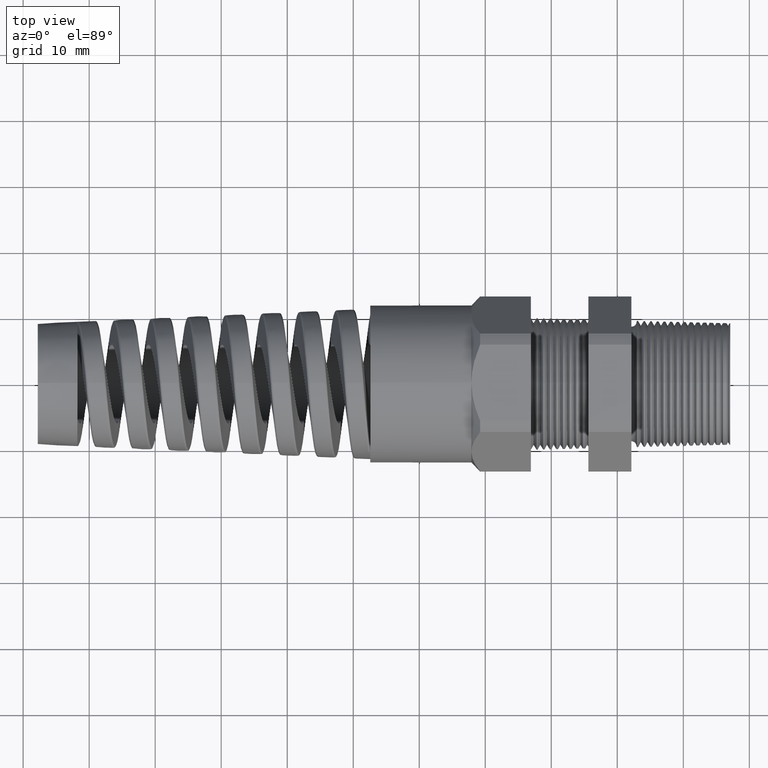
[diagram: clean part render]
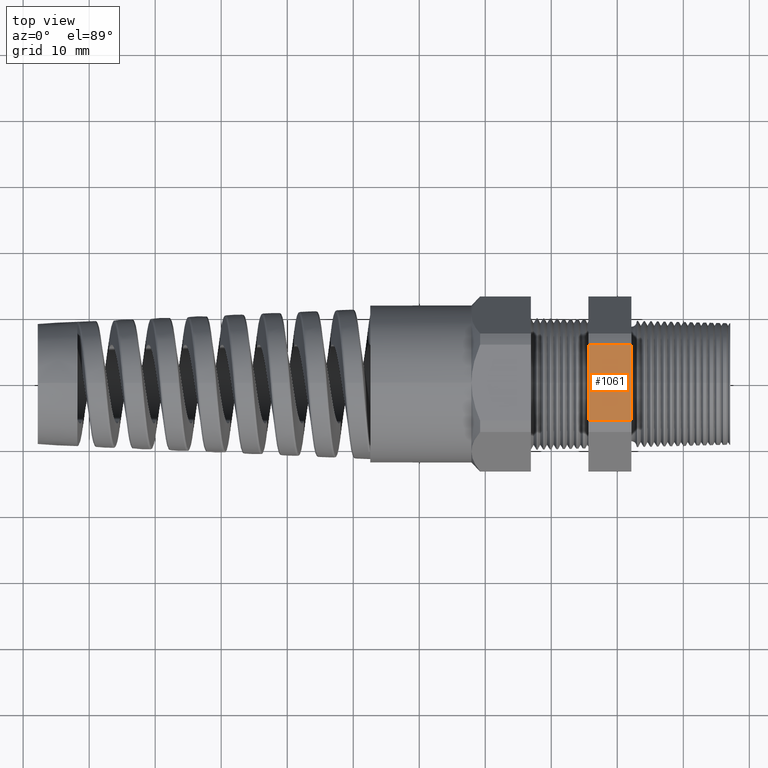
[diagram: same view with one face highlighted and labeled with its STEP entity id]
A machine part, top view. The second image highlights one B-rep face of the part: STEP entity #1061.
In plain terms, the highlighted planar face has unit normal (0, 0, 1).
Its self-contained STEP definition (entity closure, byte-faithful):
#518 = VERTEX_POINT ( 'NONE', #3222 ) ;
#520 = EDGE_CURVE ( 'NONE', #518, #521, #3221, .T. ) ;
#521 = VERTEX_POINT ( 'NONE', #3217 ) ;
#1050 = VERTEX_POINT ( 'NONE', #4154 ) ;
#1052 = EDGE_CURVE ( 'NONE', #1050, #1053, #4153, .T. ) ;
#1053 = VERTEX_POINT ( 'NONE', #4149 ) ;
#1059 = EDGE_CURVE ( 'NONE', #518, #1053, #4204, .T. ) ;
#1061 = ADVANCED_FACE ( 'NONE', ( #4200 ), #4199, .T. ) ;
#1062 = EDGE_LOOP ( 'NONE', ( #1063, #1064, #1065, #1067 ) ) ;
#1063 = ORIENTED_EDGE ( 'NONE', *, *, #1059, .T. ) ;
#1064 = ORIENTED_EDGE ( 'NONE', *, *, #1052, .F. ) ;
#1065 = ORIENTED_EDGE ( 'NONE', *, *, #1066, .F. ) ;
#1066 = EDGE_CURVE ( 'NONE', #521, #1050, #4194, .T. ) ;
#1067 = ORIENTED_EDGE ( 'NONE', *, *, #520, .F. ) ;
#3217 = CARTESIAN_POINT ( 'NONE',  ( -0.3100000000000000000, -0.2264307620443835600, 0.4699999999999997500 ) ) ;
#3218 = DIRECTION ( 'NONE',  ( 0.0000000000000000000, -1.000000000000000000, 0.0000000000000000000 ) ) ;
#3219 = VECTOR ( 'NONE', #3218, 39.37007874015748100 ) ;
#3220 = CARTESIAN_POINT ( 'NONE',  ( -0.3100000000000000000, 0.9399999999999999500, 0.4699999999999997500 ) ) ;
#3221 = LINE ( 'NONE', #3220, #3219 ) ;
#3222 = CARTESIAN_POINT ( 'NONE',  ( -0.3100000000000000000, 0.2264307620443835600, 0.4699999999999997500 ) ) ;
#4149 = CARTESIAN_POINT ( 'NONE',  ( -0.5659055118110235500, 0.2264307620443835600, 0.4699999999999997500 ) ) ;
#4150 = DIRECTION ( 'NONE',  ( 0.0000000000000000000, 1.000000000000000000, 0.0000000000000000000 ) ) ;
#4151 = VECTOR ( 'NONE', #4150, 39.37007874015748100 ) ;
#4152 = CARTESIAN_POINT ( 'NONE',  ( -0.5659055118110235500, 0.9399999999999999500, 0.4699999999999997500 ) ) ;
#4153 = LINE ( 'NONE', #4152, #4151 ) ;
#4154 = CARTESIAN_POINT ( 'NONE',  ( -0.5659055118110235500, -0.2264307620443835600, 0.4699999999999997500 ) ) ;
#4191 = DIRECTION ( 'NONE',  ( -1.000000000000000000, 0.0000000000000000000, 0.0000000000000000000 ) ) ;
#4192 = VECTOR ( 'NONE', #4191, 39.37007874015748100 ) ;
#4193 = CARTESIAN_POINT ( 'NONE',  ( 0.2800000000000000300, -0.2264307620443835600, 0.4699999999999997500 ) ) ;
#4194 = LINE ( 'NONE', #4193, #4192 ) ;
#4195 = DIRECTION ( 'NONE',  ( 1.000000000000000000, 0.0000000000000000000, 0.0000000000000000000 ) ) ;
#4196 = DIRECTION ( 'NONE',  ( 0.0000000000000000000, 0.0000000000000000000, 1.000000000000000000 ) ) ;
#4197 = CARTESIAN_POINT ( 'NONE',  ( 0.2800000000000000300, -0.2264307620443835600, 0.4699999999999997500 ) ) ;
#4198 = AXIS2_PLACEMENT_3D ( 'NONE', #4197, #4196, #4195 ) ;
#4199 = PLANE ( 'NONE',  #4198 ) ;
#4200 = FACE_OUTER_BOUND ( 'NONE', #1062, .T. ) ;
#4201 = DIRECTION ( 'NONE',  ( -1.000000000000000000, 0.0000000000000000000, 0.0000000000000000000 ) ) ;
#4202 = VECTOR ( 'NONE', #4201, 39.37007874015748100 ) ;
#4203 = CARTESIAN_POINT ( 'NONE',  ( 0.2800000000000000300, 0.2264307620443835600, 0.4699999999999997500 ) ) ;
#4204 = LINE ( 'NONE', #4203, #4202 ) ;